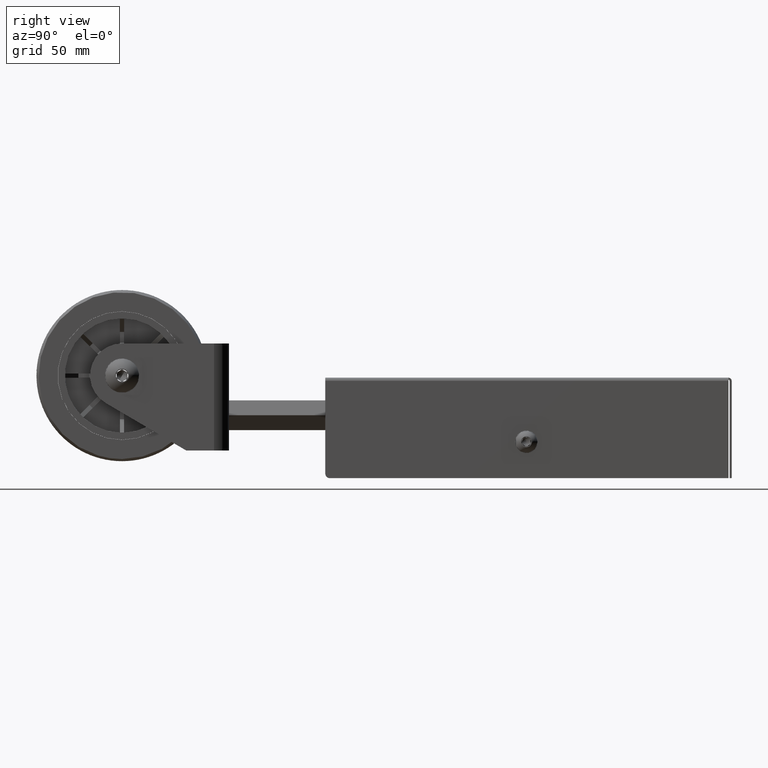
[diagram: clean part render]
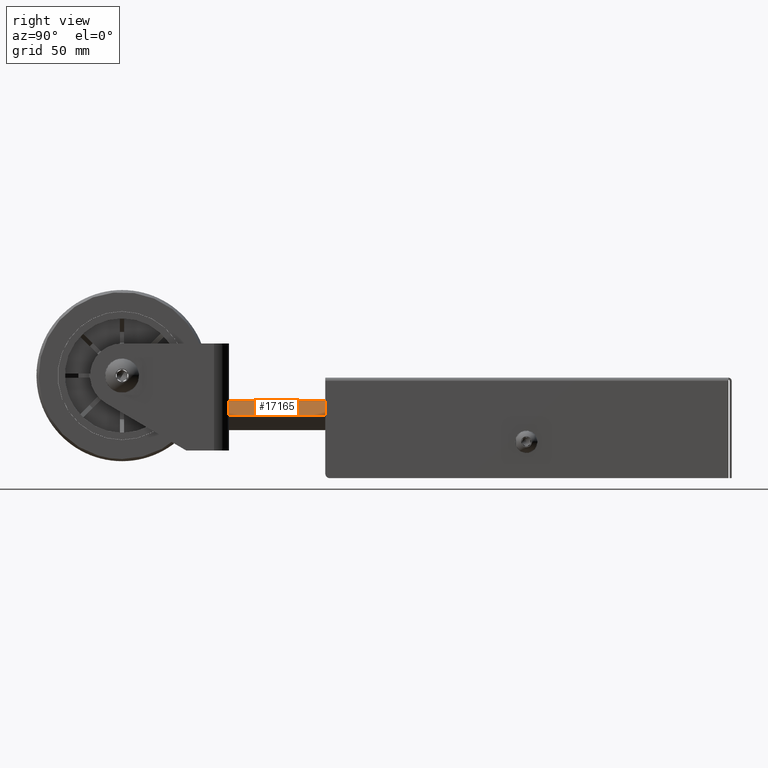
[diagram: same view with one face highlighted and labeled with its STEP entity id]
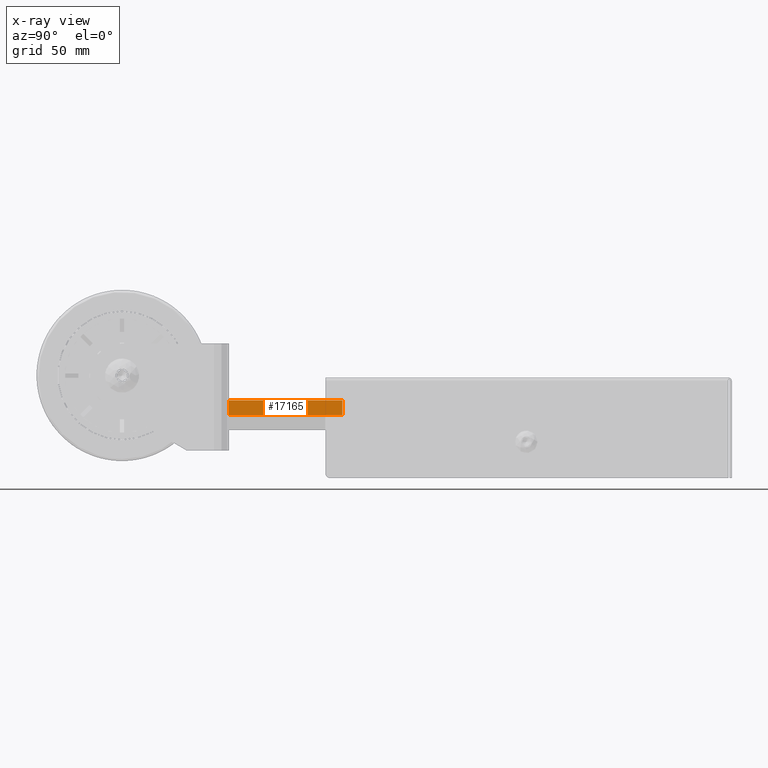
[diagram: x-ray of the same camera — body ghosted, the highlighted face saturated]
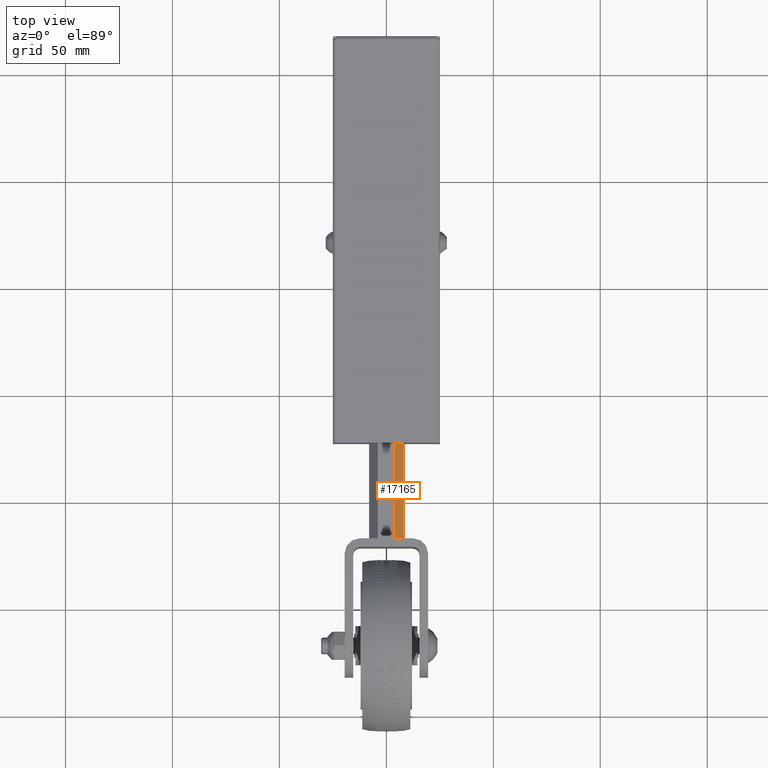
[diagram: same view with one face highlighted and labeled with its STEP entity id]
A machine part, right view. The second image highlights one B-rep face of the part: STEP entity #17165.
The next image is the same camera in x-ray: the body ghosted, the highlighted face saturated — about 0% of this face is hidden behind the body in this view.
A second angle (top view) of the same face is appended — the face is thin or edge-on in the first view.
In plain terms, the highlighted planar face has unit normal (-0.866, -0, -0.5).
Its self-contained STEP definition (entity closure, byte-faithful):
#3251 = VECTOR ( 'NONE', #47679, 1000.000000000000000 ) ;
#5940 = CARTESIAN_POINT ( 'NONE',  ( -6.949999999999997500, 120.0000000000000000, 4.012584370867897700 ) ) ;
#7054 = VECTOR ( 'NONE', #61525, 1000.000000000000000 ) ;
#10549 = LINE ( 'NONE', #16532, #11462 ) ;
#10979 = DIRECTION ( 'NONE',  ( -0.8660254037844387100, 0.0000000000000000000, -0.4999999999999998300 ) ) ;
#11462 = VECTOR ( 'NONE', #10979, 1000.000000000000000 ) ;
#14308 = EDGE_CURVE ( 'NONE', #40860, #50625, #69648, .T. ) ;
#16532 = CARTESIAN_POINT ( 'NONE',  ( 0.0000000000000000000, 53.00000000000000000, 8.025168741735793500 ) ) ;
#17165 = ADVANCED_FACE ( 'NONE', ( #47575 ), #76110, .F. ) ;
#18778 = CARTESIAN_POINT ( 'NONE',  ( 0.0000000000000000000, 0.0000000000000000000, 8.025168741735793500 ) ) ;
#22906 = AXIS2_PLACEMENT_3D ( 'NONE', #58043, #69496, #34202 ) ;
#27822 = LINE ( 'NONE', #5940, #7054 ) ;
#30140 = ORIENTED_EDGE ( 'NONE', *, *, #76560, .T. ) ;
#34202 = DIRECTION ( 'NONE',  ( -0.8660254037844387100, 0.0000000000000000000, -0.4999999999999998300 ) ) ;
#37602 = EDGE_CURVE ( 'NONE', #37607, #50625, #72500, .T. ) ;
#37607 = VERTEX_POINT ( 'NONE', #71862 ) ;
#37616 = CARTESIAN_POINT ( 'NONE',  ( -6.949999999999997500, 0.0000000000000000000, 4.012584370867897700 ) ) ;
#39077 = ORIENTED_EDGE ( 'NONE', *, *, #14308, .F. ) ;
#39567 = CARTESIAN_POINT ( 'NONE',  ( 0.0000000000000000000, 120.0000000000000000, 8.025168741735793500 ) ) ;
#40860 = VERTEX_POINT ( 'NONE', #58833 ) ;
#41660 = CARTESIAN_POINT ( 'NONE',  ( -6.949999999999997500, 53.00000000000000000, 4.012584370867897700 ) ) ;
#45063 = ORIENTED_EDGE ( 'NONE', *, *, #73896, .T. ) ;
#47575 = FACE_OUTER_BOUND ( 'NONE', #69290, .T. ) ;
#47679 = DIRECTION ( 'NONE',  ( 0.8660254037844387100, 0.0000000000000000000, 0.4999999999999998300 ) ) ;
#50625 = VERTEX_POINT ( 'NONE', #18778 ) ;
#51533 = ORIENTED_EDGE ( 'NONE', *, *, #37602, .T. ) ;
#55063 = VERTEX_POINT ( 'NONE', #41660 ) ;
#58043 = CARTESIAN_POINT ( 'NONE',  ( -6.949999999999997500, 120.0000000000000000, 4.012584370867897700 ) ) ;
#58833 = CARTESIAN_POINT ( 'NONE',  ( 0.0000000000000000000, 53.00000000000000000, 8.025168741735793500 ) ) ;
#61525 = DIRECTION ( 'NONE',  ( -0.0000000000000000000, -1.000000000000000000, -0.0000000000000000000 ) ) ;
#65868 = VECTOR ( 'NONE', #70351, 1000.000000000000000 ) ;
#69290 = EDGE_LOOP ( 'NONE', ( #39077, #45063, #30140, #51533 ) ) ;
#69496 = DIRECTION ( 'NONE',  ( 0.4999999999999998300, 0.0000000000000000000, -0.8660254037844387100 ) ) ;
#69648 = LINE ( 'NONE', #39567, #65868 ) ;
#70351 = DIRECTION ( 'NONE',  ( -0.0000000000000000000, -1.000000000000000000, -0.0000000000000000000 ) ) ;
#71862 = CARTESIAN_POINT ( 'NONE',  ( -6.949999999999997500, 0.0000000000000000000, 4.012584370867896800 ) ) ;
#72500 = LINE ( 'NONE', #37616, #3251 ) ;
#73896 = EDGE_CURVE ( 'NONE', #40860, #55063, #10549, .T. ) ;
#76110 = PLANE ( 'NONE',  #22906 ) ;
#76560 = EDGE_CURVE ( 'NONE', #55063, #37607, #27822, .T. ) ;